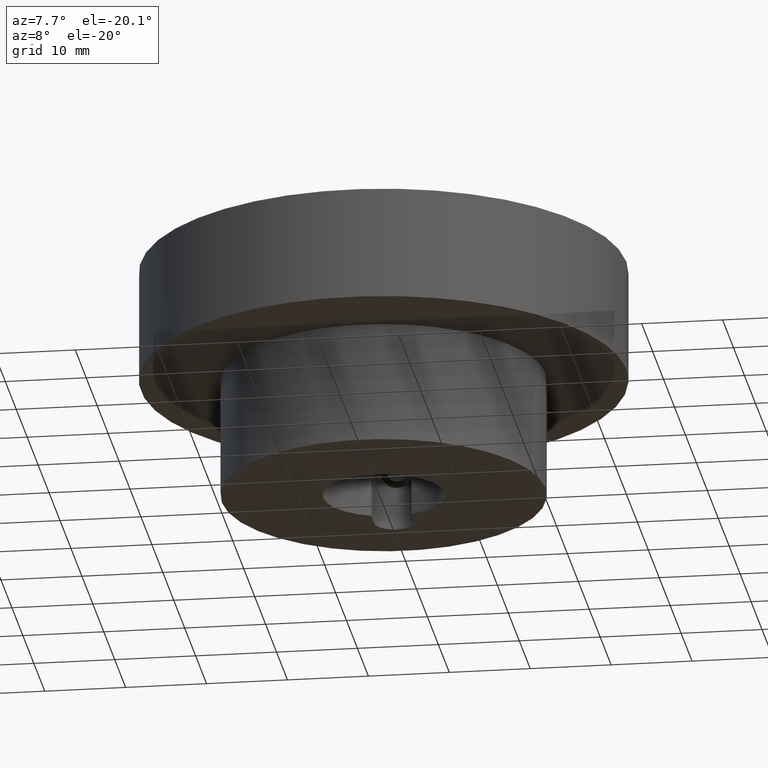
[diagram: clean part render]
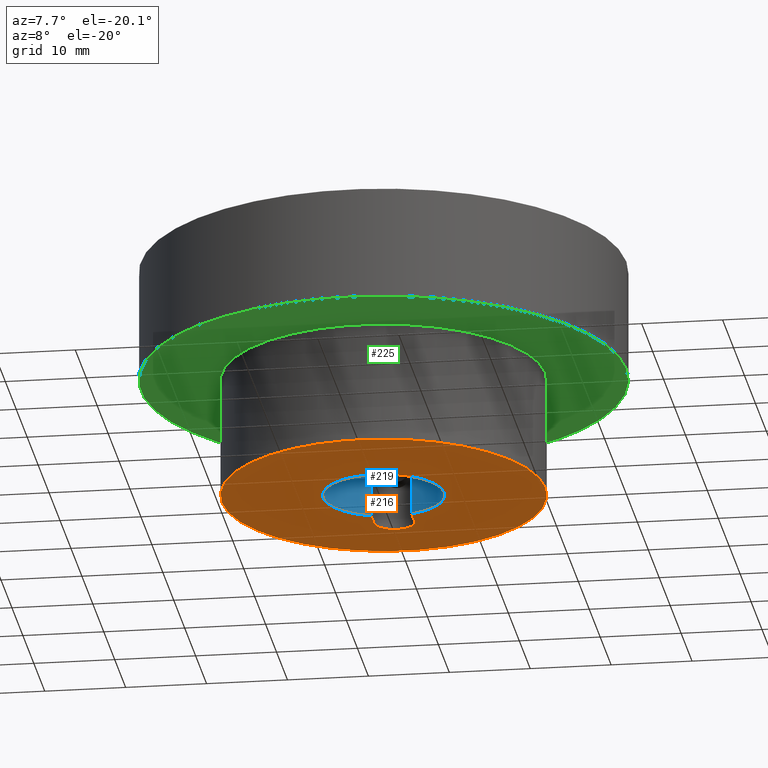
[diagram: same view with three faces highlighted in distinct colors, each labeled with its STEP entity id]
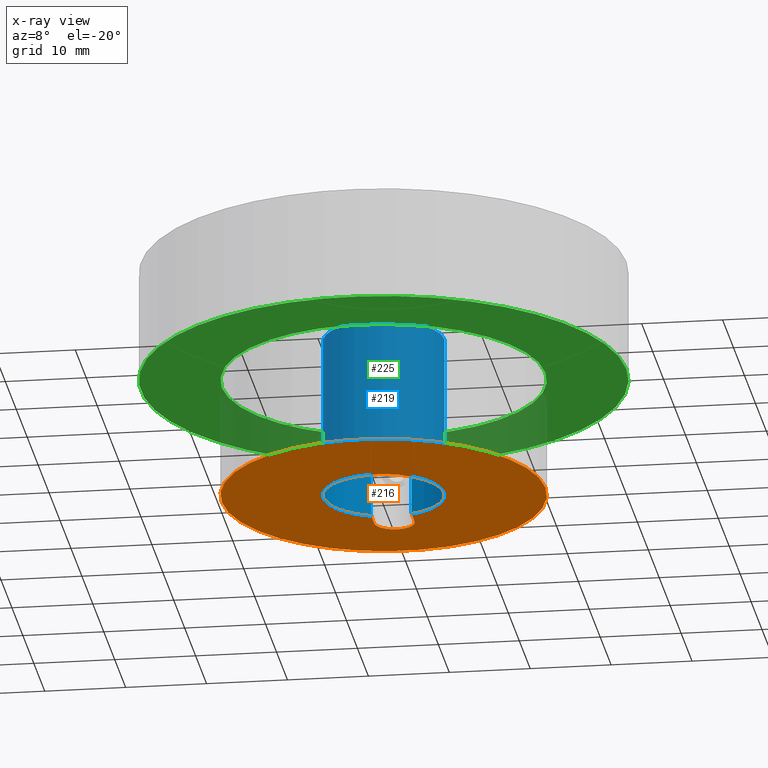
[diagram: x-ray of the same camera — body ghosted, the three highlighted faces saturated]
A machine part, auxiliary view with three faces highlighted in distinct colors.
The next image is the same camera in x-ray (body ghosted, the three faces saturated) — at least one of them is partly hidden behind the body in this view.
Their STEP definitions:

[orange] entity #216 — the highlighted planar face has unit normal (0, 0, -1).
#216 = ADVANCED_FACE( '', ( #247, #248 ), #249, .T. );
#247 = FACE_OUTER_BOUND( '', #319, .T. );
#248 = FACE_BOUND( '', #320, .T. );
#249 = PLANE( '', #321 );
#319 = EDGE_LOOP( '', ( #391 ) );
#320 = EDGE_LOOP( '', ( #392, #393, #394, #395 ) );
#321 = AXIS2_PLACEMENT_3D( '', #396, #397, #398 );
#391 = ORIENTED_EDGE( '', *, *, #563, .F. );
#392 = ORIENTED_EDGE( '', *, *, #564, .F. );
#393 = ORIENTED_EDGE( '', *, *, #565, .F. );
#394 = ORIENTED_EDGE( '', *, *, #566, .F. );
#395 = ORIENTED_EDGE( '', *, *, #567, .F. );
#396 = CARTESIAN_POINT( '', ( 0.000000000000000, 0.000000000000000, -39.0000000000000 ) );
#397 = DIRECTION( '', ( 0.000000000000000, 0.000000000000000, -1.00000000000000 ) );
#398 = DIRECTION( '', ( 1.00000000000000, 0.000000000000000, 0.000000000000000 ) );
#563 = EDGE_CURVE( '', #609, #609, #610, .T. );
#564 = EDGE_CURVE( '', #611, #612, #613, .T. );
#565 = EDGE_CURVE( '', #614, #611, #615, .F. );
#566 = EDGE_CURVE( '', #616, #614, #617, .T. );
#567 = EDGE_CURVE( '', #612, #616, #618, .F. );
#609 = VERTEX_POINT( '', #689 );
#610 = CIRCLE( '', #690, 20.0000000000000 );
#611 = VERTEX_POINT( '', #691 );
#612 = VERTEX_POINT( '', #692 );
#613 = LINE( '', #693, #694 );
#614 = VERTEX_POINT( '', #695 );
#615 = CIRCLE( '', #696, 7.50000000000000 );
#616 = VERTEX_POINT( '', #697 );
#617 = LINE( '', #698, #699 );
#618 = CIRCLE( '', #700, 2.50000000000000 );
#689 = CARTESIAN_POINT( '', ( 20.0000000000000, 0.000000000000000, -39.0000000000000 ) );
#690 = AXIS2_PLACEMENT_3D( '', #933, #934, #935 );
#691 = CARTESIAN_POINT( '', ( -2.50000000000001, 7.07106781186547, -39.0000000000000 ) );
#692 = CARTESIAN_POINT( '', ( -2.50000000000000, 9.80000000000000, -39.0000000000000 ) );
#693 = CARTESIAN_POINT( '', ( -2.50000000000000, 1.53075794227797E-016, -39.0000000000000 ) );
#694 = VECTOR( '', #936, 1000.00000000000 );
#695 = CARTESIAN_POINT( '', ( 2.50000000000000, 7.07106781186548, -39.0000000000000 ) );
#696 = AXIS2_PLACEMENT_3D( '', #937, #938, #939 );
#697 = CARTESIAN_POINT( '', ( 2.50000000000000, 9.80000000000000, -39.0000000000000 ) );
#698 = CARTESIAN_POINT( '', ( 2.50000000000000, -1.53075794227797E-016, -39.0000000000000 ) );
#699 = VECTOR( '', #940, 1000.00000000000 );
#700 = AXIS2_PLACEMENT_3D( '', #941, #942, #943 );
#933 = CARTESIAN_POINT( '', ( 0.000000000000000, 0.000000000000000, -39.0000000000000 ) );
#934 = DIRECTION( '', ( 0.000000000000000, -0.000000000000000, 1.00000000000000 ) );
#935 = DIRECTION( '', ( 1.00000000000000, 0.000000000000000, 0.000000000000000 ) );
#936 = DIRECTION( '', ( 6.12303176911189E-017, 1.00000000000000, 0.000000000000000 ) );
#937 = CARTESIAN_POINT( '', ( 0.000000000000000, 0.000000000000000, -39.0000000000000 ) );
#938 = DIRECTION( '', ( 0.000000000000000, -0.000000000000000, 1.00000000000000 ) );
#939 = DIRECTION( '', ( 1.00000000000000, 0.000000000000000, 0.000000000000000 ) );
#940 = DIRECTION( '', ( -6.12303176911189E-017, -1.00000000000000, -0.000000000000000 ) );
#941 = CARTESIAN_POINT( '', ( 0.000000000000000, 9.80000000000000, -39.0000000000000 ) );
#942 = DIRECTION( '', ( 0.000000000000000, -0.000000000000000, 1.00000000000000 ) );
#943 = DIRECTION( '', ( 1.00000000000000, 0.000000000000000, 0.000000000000000 ) );

[blue] entity #219 — the highlighted cylindrical surface (partial cylindrical patch) has radius 7.5 mm, axis along (-0, -0, 1).
#219 = ADVANCED_FACE( '', ( #255 ), #256, .F. );
#255 = FACE_OUTER_BOUND( '', #327, .T. );
#256 = CYLINDRICAL_SURFACE( '', #328, 7.50000000000000 );
#327 = EDGE_LOOP( '', ( #411, #412, #413, #414 ) );
#328 = AXIS2_PLACEMENT_3D( '', #415, #416, #417 );
#411 = ORIENTED_EDGE( '', *, *, #565, .T. );
#412 = ORIENTED_EDGE( '', *, *, #572, .F. );
#413 = ORIENTED_EDGE( '', *, *, #573, .F. );
#414 = ORIENTED_EDGE( '', *, *, #574, .T. );
#415 = CARTESIAN_POINT( '', ( 0.000000000000000, 0.000000000000000, 35.8146259549836 ) );
#416 = DIRECTION( '', ( -0.000000000000000, -0.000000000000000, 1.00000000000000 ) );
#417 = DIRECTION( '', ( -1.00000000000000, 6.12303176911189E-017, 0.000000000000000 ) );
#565 = EDGE_CURVE( '', #614, #611, #615, .F. );
#572 = EDGE_CURVE( '', #625, #611, #627, .T. );
#573 = EDGE_CURVE( '', #628, #625, #629, .F. );
#574 = EDGE_CURVE( '', #628, #614, #630, .T. );
#611 = VERTEX_POINT( '', #691 );
#614 = VERTEX_POINT( '', #695 );
#615 = CIRCLE( '', #696, 7.50000000000000 );
#625 = VERTEX_POINT( '', #708 );
#627 = LINE( '', #711, #712 );
#628 = VERTEX_POINT( '', #713 );
#629 = CIRCLE( '', #714, 7.50000000000000 );
#630 = LINE( '', #715, #716 );
#691 = CARTESIAN_POINT( '', ( -2.50000000000001, 7.07106781186547, -39.0000000000000 ) );
#695 = CARTESIAN_POINT( '', ( 2.50000000000000, 7.07106781186548, -39.0000000000000 ) );
#696 = AXIS2_PLACEMENT_3D( '', #937, #938, #939 );
#708 = CARTESIAN_POINT( '', ( -2.50000000000000, 7.07106781186547, -19.0000000000000 ) );
#711 = CARTESIAN_POINT( '', ( -2.50000000000001, 7.07106781186547, 35.8146259549836 ) );
#712 = VECTOR( '', #952, 1000.00000000000 );
#713 = CARTESIAN_POINT( '', ( 2.50000000000000, 7.07106781186548, -19.0000000000000 ) );
#714 = AXIS2_PLACEMENT_3D( '', #953, #954, #955 );
#715 = CARTESIAN_POINT( '', ( 2.50000000000000, 7.07106781186548, 35.8146259549836 ) );
#716 = VECTOR( '', #956, 1000.00000000000 );
#937 = CARTESIAN_POINT( '', ( 0.000000000000000, 0.000000000000000, -39.0000000000000 ) );
#938 = DIRECTION( '', ( 0.000000000000000, -0.000000000000000, 1.00000000000000 ) );
#939 = DIRECTION( '', ( 1.00000000000000, 0.000000000000000, 0.000000000000000 ) );
#952 = DIRECTION( '', ( 0.000000000000000, 0.000000000000000, -1.00000000000000 ) );
#953 = CARTESIAN_POINT( '', ( 0.000000000000000, 0.000000000000000, -19.0000000000000 ) );
#954 = DIRECTION( '', ( 0.000000000000000, -0.000000000000000, 1.00000000000000 ) );
#955 = DIRECTION( '', ( 1.00000000000000, 0.000000000000000, 0.000000000000000 ) );
#956 = DIRECTION( '', ( 0.000000000000000, 0.000000000000000, -1.00000000000000 ) );

[green] entity #225 — the highlighted planar face has unit normal (0, 0, -1).
#225 = ADVANCED_FACE( '', ( #272, #273 ), #274, .T. );
#272 = FACE_BOUND( '', #344, .T. );
#273 = FACE_OUTER_BOUND( '', #345, .T. );
#274 = PLANE( '', #346 );
#344 = EDGE_LOOP( '', ( #449 ) );
#345 = EDGE_LOOP( '', ( #450 ) );
#346 = AXIS2_PLACEMENT_3D( '', #451, #452, #453 );
#449 = ORIENTED_EDGE( '', *, *, #581, .T. );
#450 = ORIENTED_EDGE( '', *, *, #568, .F. );
#451 = CARTESIAN_POINT( '', ( 0.000000000000000, 0.000000000000000, -24.0000000000000 ) );
#452 = DIRECTION( '', ( 0.000000000000000, 0.000000000000000, -1.00000000000000 ) );
#453 = DIRECTION( '', ( 1.00000000000000, 0.000000000000000, 0.000000000000000 ) );
#568 = EDGE_CURVE( '', #619, #619, #620, .T. );
#581 = EDGE_CURVE( '', #641, #641, #642, .T. );
#619 = VERTEX_POINT( '', #701 );
#620 = CIRCLE( '', #702, 30.0000000000000 );
#641 = VERTEX_POINT( '', #843 );
#642 = CIRCLE( '', #844, 20.0000000000000 );
#701 = CARTESIAN_POINT( '', ( 30.0000000000000, 0.000000000000000, -24.0000000000000 ) );
#702 = AXIS2_PLACEMENT_3D( '', #944, #945, #946 );
#843 = CARTESIAN_POINT( '', ( 20.0000000000000, 0.000000000000000, -24.0000000000000 ) );
#844 = AXIS2_PLACEMENT_3D( '', #965, #966, #967 );
#944 = CARTESIAN_POINT( '', ( 0.000000000000000, 0.000000000000000, -24.0000000000000 ) );
#945 = DIRECTION( '', ( 0.000000000000000, -0.000000000000000, 1.00000000000000 ) );
#946 = DIRECTION( '', ( 1.00000000000000, 0.000000000000000, 0.000000000000000 ) );
#965 = CARTESIAN_POINT( '', ( 0.000000000000000, 0.000000000000000, -24.0000000000000 ) );
#966 = DIRECTION( '', ( 0.000000000000000, -0.000000000000000, 1.00000000000000 ) );
#967 = DIRECTION( '', ( 1.00000000000000, 0.000000000000000, 0.000000000000000 ) );